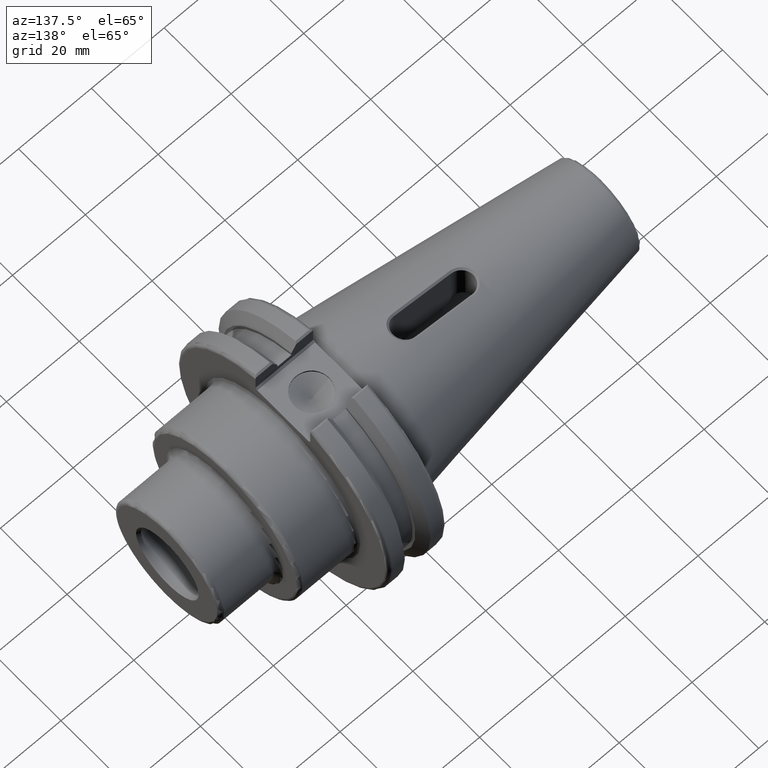
[diagram: clean part render]
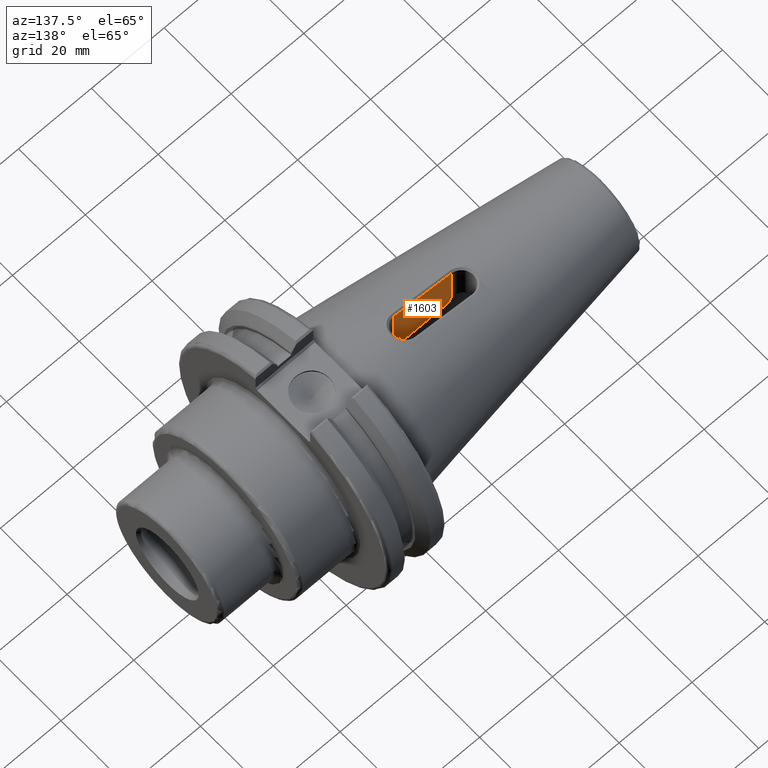
[diagram: same view with one face highlighted and labeled with its STEP entity id]
A machine part, auxiliary view. The second image highlights one B-rep face of the part: STEP entity #1603.
In plain terms, the highlighted planar face has unit normal (0, -1, 0).
Its self-contained STEP definition (entity closure, byte-faithful):
#16=(
BOUNDED_CURVE()
B_SPLINE_CURVE(2,(#3019,#3020,#3021),.UNSPECIFIED.,.F.,.F.)
B_SPLINE_CURVE_WITH_KNOTS((3,3),(0.,0.162292655863751),.UNSPECIFIED.)
CURVE()
GEOMETRIC_REPRESENTATION_ITEM()
RATIONAL_B_SPLINE_CURVE((1.,1.00804061531083,1.))
REPRESENTATION_ITEM('')
);
#83=B_SPLINE_CURVE_WITH_KNOTS('',3,(#2920,#2921,#2922,#2923),
 .UNSPECIFIED.,.F.,.F.,(4,4),(0.00694082686737926,1.5870763337911),
 .UNSPECIFIED.);
#85=B_SPLINE_CURVE_WITH_KNOTS('',3,(#2961,#2962,#2963,#2964),
 .UNSPECIFIED.,.F.,.F.,(4,4),(-0.942959195224581,-0.935787018426139),
 .UNSPECIFIED.);
#150=PLANE('',#1724);
#211=FACE_OUTER_BOUND('',#306,.T.);
#306=EDGE_LOOP('',(#1214,#1215,#1216,#1217,#1218,#1219,#1220,#1221));
#399=LINE('',#2981,#505);
#400=LINE('',#3012,#506);
#401=LINE('',#3014,#507);
#402=LINE('',#3016,#508);
#403=LINE('',#3018,#509);
#505=VECTOR('',#1931,10.);
#506=VECTOR('',#1934,10.);
#507=VECTOR('',#1935,10.);
#508=VECTOR('',#1936,10.);
#509=VECTOR('',#1937,10.);
#695=VERTEX_POINT('',#2755);
#701=VERTEX_POINT('',#2917);
#702=VERTEX_POINT('',#2919);
#708=VERTEX_POINT('',#2980);
#711=VERTEX_POINT('',#3011);
#712=VERTEX_POINT('',#3013);
#713=VERTEX_POINT('',#3015);
#714=VERTEX_POINT('',#3017);
#888=EDGE_CURVE('',#701,#702,#83,.T.);
#891=EDGE_CURVE('',#702,#695,#85,.T.);
#898=EDGE_CURVE('',#708,#695,#399,.T.);
#902=EDGE_CURVE('',#711,#701,#400,.T.);
#903=EDGE_CURVE('',#712,#711,#401,.T.);
#904=EDGE_CURVE('',#713,#712,#402,.T.);
#905=EDGE_CURVE('',#714,#713,#403,.T.);
#906=EDGE_CURVE('',#708,#714,#16,.T.);
#1214=ORIENTED_EDGE('',*,*,#891,.F.);
#1215=ORIENTED_EDGE('',*,*,#888,.F.);
#1216=ORIENTED_EDGE('',*,*,#902,.F.);
#1217=ORIENTED_EDGE('',*,*,#903,.F.);
#1218=ORIENTED_EDGE('',*,*,#904,.F.);
#1219=ORIENTED_EDGE('',*,*,#905,.F.);
#1220=ORIENTED_EDGE('',*,*,#906,.F.);
#1221=ORIENTED_EDGE('',*,*,#898,.T.);
#1603=ADVANCED_FACE('',(#211),#150,.F.);
#1724=AXIS2_PLACEMENT_3D('',#3010,#1932,#1933);
#1931=DIRECTION('',(0.,0.,1.));
#1932=DIRECTION('center_axis',(2.47501948164844E-16,-1.,0.));
#1933=DIRECTION('ref_axis',(1.,2.47501948164844E-16,0.));
#1934=DIRECTION('',(0.,0.,1.));
#1935=DIRECTION('',(1.,0.,0.));
#1936=DIRECTION('',(0.,0.,1.));
#1937=DIRECTION('',(1.,0.,0.));
#2755=CARTESIAN_POINT('',(-30.0499999999999,-3.15000000000001,17.057143915376));
#2917=CARTESIAN_POINT('',(-14.3499999999988,-3.15,19.3789112622208));
#2919=CARTESIAN_POINT('',(-29.9767196948388,-3.15000000000001,17.0678517352311));
#2920=CARTESIAN_POINT('Ctrl Pts',(-14.3499999999988,-3.15,19.3789112622207));
#2921=CARTESIAN_POINT('Ctrl Pts',(-19.8907218756677,-3.15,18.5608023436382));
#2922=CARTESIAN_POINT('Ctrl Pts',(-25.0802772673756,-3.15,17.7933110590116));
#2923=CARTESIAN_POINT('Ctrl Pts',(-29.9767196948388,-3.15000000000001,17.0678517352311));
#2961=CARTESIAN_POINT('Ctrl Pts',(-29.9767196948388,-3.15000000000001,17.0678517352311));
#2962=CARTESIAN_POINT('Ctrl Pts',(-30.0012210666056,-3.15000000000001,17.0642215999121));
#2963=CARTESIAN_POINT('Ctrl Pts',(-30.0256460875677,-3.15000000000001,17.060652417639));
#2964=CARTESIAN_POINT('Ctrl Pts',(-30.0499999999999,-3.15000000000001,17.057143915376));
#2980=CARTESIAN_POINT('',(-30.05,-3.15000000000001,5.52518425021694));
#2981=CARTESIAN_POINT('',(-30.05,-3.15000000000001,0.));
#3010=CARTESIAN_POINT('Origin',(-30.05,-3.15000000000001,0.));
#3011=CARTESIAN_POINT('',(-14.35,-3.15,6.7512961718473));
#3012=CARTESIAN_POINT('',(-14.35,-3.15,0.));
#3013=CARTESIAN_POINT('',(-16.2,-3.15,6.7512961718473));
#3014=CARTESIAN_POINT('',(-11.2,-3.15,6.7512961718473));
#3015=CARTESIAN_POINT('',(-16.2,-3.15,4.07430975749267));
#3016=CARTESIAN_POINT('',(-16.2,-3.15,0.));
#3017=CARTESIAN_POINT('',(-29.3229321509024,-3.15,4.07430975749267));
#3018=CARTESIAN_POINT('',(79.8619592719569,-3.14999999999998,4.07430975749269));
#3019=CARTESIAN_POINT('Ctrl Pts',(-30.05,-3.15000000000001,5.52518425021694));
#3020=CARTESIAN_POINT('Ctrl Pts',(-29.6315212942008,-3.15000000000001,4.72348221680911));
#3021=CARTESIAN_POINT('Ctrl Pts',(-29.3229321509024,-3.15000000000001,4.07430975749264));